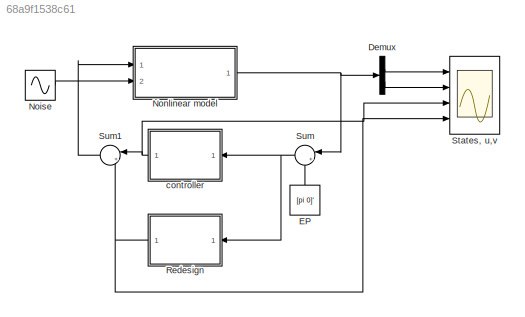
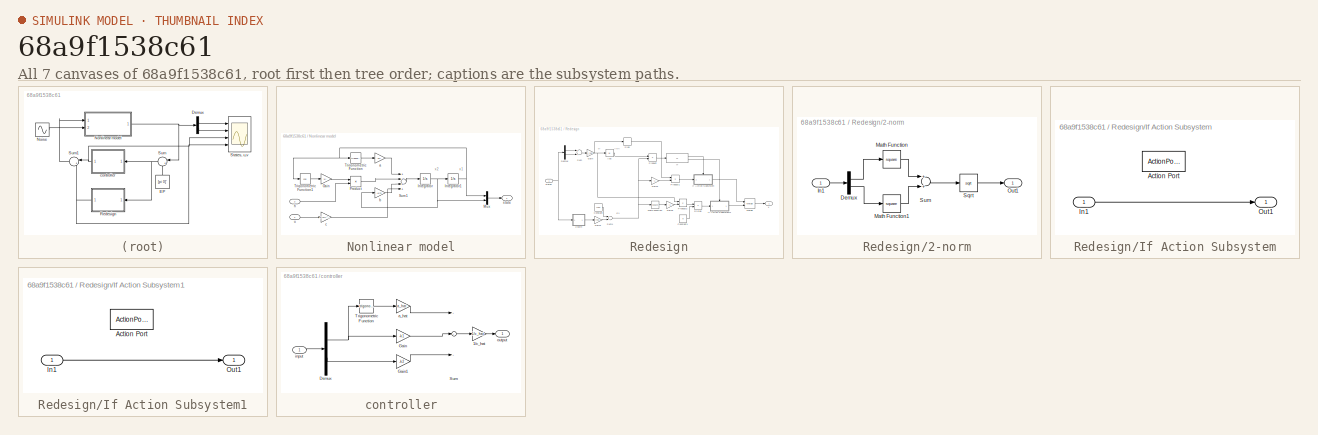
[diagram: thumbnail index - all 7 canvases of the model, root first then tree order]
MODEL slx_68a9f1538c61
KIND model
CONFIG AbsTol = auto
CONFIG FixedStep = auto
CONFIG InitFcn = run lyapRedesign.m
CONFIG MaxStep = auto
CONFIG MinStep = auto
CONFIG RelTol = 1e-3
CONFIG SampleTimeConstraint = Unconstrained
CONFIG Solver = VariableStepAuto
CONFIG SolverMode = Auto
CONFIG SolverName = VariableStepAuto
CONFIG StartTime = 0.0
CONFIG StopTime = 20
BLOCK [Demux] Demux
  DisplayOption = bar
  Outputs = 2
  Ports = [1, 2]
BLOCK [Constant] EP
  Value = [pi  0]'
BLOCK [Sin] Noise
  Frequency = 10
  Ports = [0, 1]
  SampleTime = 0
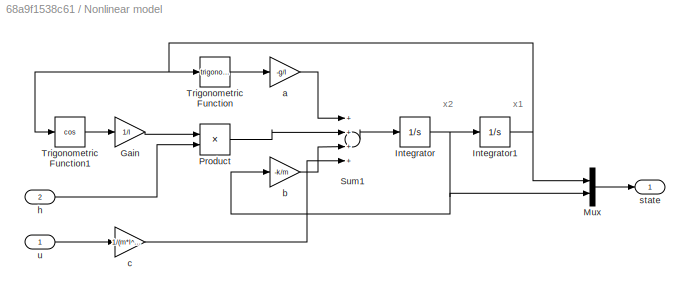
BLOCK [SubSystem] Nonlinear model
  Ports = [2, 1]
  RequestExecContextInheritance = off
  Variant = off
BLOCK [Gain] Nonlinear model/Gain
  Gain = 1/l
  OutDataTypeStr = Inherit: Inherit via internal rule
  ParamDataTypeStr = Inherit: Inherit via internal rule
  SaturateOnIntegerOverflow = off
BLOCK [Integrator] Nonlinear model/Integrator
  ContinuousStateAttributes = 'speed'
  Ports = [1, 1]
BLOCK [Integrator] Nonlinear model/Integrator1
  ContinuousStateAttributes = 'angle'
  Ports = [1, 1]
BLOCK [Mux] Nonlinear model/Mux
  DisplayOption = bar
  Inputs = 2
  Ports = [2, 1]
BLOCK [Product] Nonlinear model/Product
  InputSameDT = off
  OutDataTypeStr = Inherit: Inherit via internal rule
  Ports = [2, 1]
  RndMeth = Floor
  SaturateOnIntegerOverflow = off
BLOCK [Sum] Nonlinear model/Sum1
  InputSameDT = off
  Inputs = ++++
  OutDataTypeStr = Inherit: Inherit via internal rule
  Ports = [4, 1]
  SaturateOnIntegerOverflow = off
BLOCK [Trigonometry] Nonlinear model/Trigonometric Function
  Ports = [1, 1]
BLOCK [Trigonometry] Nonlinear model/Trigonometric Function1
  Operator = cos
  Ports = [1, 1]
BLOCK [Gain] Nonlinear model/a
  Gain = -g/l
  OutDataTypeStr = Inherit: Inherit via internal rule
  ParamDataTypeStr = Inherit: Inherit via internal rule
  SaturateOnIntegerOverflow = off
BLOCK [Gain] Nonlinear model/b
  Gain = -k/m
  OutDataTypeStr = Inherit: Inherit via internal rule
  ParamDataTypeStr = Inherit: Inherit via internal rule
  SaturateOnIntegerOverflow = off
BLOCK [Gain] Nonlinear model/c
  Gain = 1/(m*l^2)
  OutDataTypeStr = Inherit: Inherit via internal rule
  ParamDataTypeStr = Inherit: Inherit via internal rule
  SaturateOnIntegerOverflow = off
BLOCK [Inport] Nonlinear model/h
  IconDisplay = Port number
  Port = 2
BLOCK [Outport] Nonlinear model/state
  IconDisplay = Port number
BLOCK [Inport] Nonlinear model/u
  IconDisplay = Port number
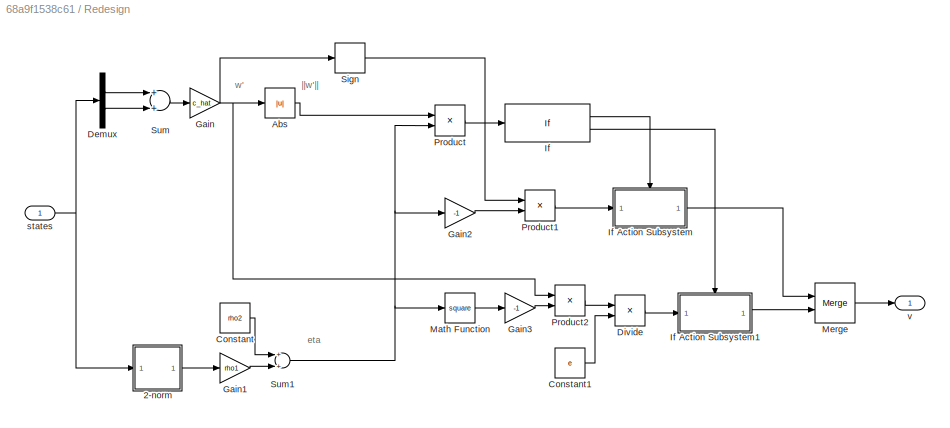
BLOCK [SubSystem] Redesign
  Ports = [1, 1]
  RequestExecContextInheritance = off
  Variant = off
BLOCK [SubSystem] Redesign/2-norm
  Ports = [1, 1]
  RequestExecContextInheritance = off
  Variant = off
BLOCK [Demux] Redesign/2-norm/Demux
  DisplayOption = bar
  Outputs = 2
  Ports = [1, 2]
BLOCK [Inport] Redesign/2-norm/In1
  IconDisplay = Port number
BLOCK [Math] Redesign/2-norm/Math Function
  Operator = square
  Ports = [1, 1]
BLOCK [Math] Redesign/2-norm/Math Function1
  Operator = square
  Ports = [1, 1]
BLOCK [Outport] Redesign/2-norm/Out1
  IconDisplay = Port number
BLOCK [Sqrt] Redesign/2-norm/Sqrt
BLOCK [Sum] Redesign/2-norm/Sum
  InputSameDT = off
  OutDataTypeStr = Inherit: Inherit via internal rule
  Ports = [2, 1]
  SaturateOnIntegerOverflow = off
BLOCK [Abs] Redesign/Abs
  SaturateOnIntegerOverflow = off
  ZeroCross = off
BLOCK [Constant] Redesign/Constant
  Value = rho2
BLOCK [Constant] Redesign/Constant1
  Value = e
BLOCK [Demux] Redesign/Demux
  DisplayOption = bar
  Outputs = 2
  Ports = [1, 2]
BLOCK [Product] Redesign/Divide
  InputSameDT = off
  Inputs = */
  OutDataTypeStr = Inherit: Inherit via internal rule
  Ports = [2, 1]
  RndMeth = Floor
  SaturateOnIntegerOverflow = off
BLOCK [Gain] Redesign/Gain
  Gain = c_hat
  OutDataTypeStr = Inherit: Inherit via internal rule
  ParamDataTypeStr = Inherit: Inherit via internal rule
  SaturateOnIntegerOverflow = off
BLOCK [Gain] Redesign/Gain1
  Gain = rho1
  OutDataTypeStr = Inherit: Inherit via internal rule
  ParamDataTypeStr = Inherit: Inherit via internal rule
  SaturateOnIntegerOverflow = off
BLOCK [Gain] Redesign/Gain2
  Gain = -1
  OutDataTypeStr = Inherit: Inherit via internal rule
  ParamDataTypeStr = Inherit: Inherit via internal rule
  SaturateOnIntegerOverflow = off
BLOCK [Gain] Redesign/Gain3
  Gain = -1
  OutDataTypeStr = Inherit: Inherit via internal rule
  ParamDataTypeStr = Inherit: Inherit via internal rule
  SaturateOnIntegerOverflow = off
BLOCK [If] Redesign/If
  ElseIfExpressions = u1 < e
  IfExpression = u1 >= e
  Ports = [1, 2]
  ShowElse = off
  ZeroCross = off
BLOCK [SubSystem] Redesign/If Action Subsystem
  Ports = [1, 1, 0, 0, 0, 0, 0, 1]
  RequestExecContextInheritance = off
  TreatAsAtomicUnit = on
  Variant = off
BLOCK [ActionPort] Redesign/If Action Subsystem/Action Port
  ActionType = then
BLOCK [Inport] Redesign/If Action Subsystem/In1
  IconDisplay = Port number
BLOCK [Outport] Redesign/If Action Subsystem/Out1
  IconDisplay = Port number
BLOCK [SubSystem] Redesign/If Action Subsystem1
  Ports = [1, 1, 0, 0, 0, 0, 0, 1]
  RequestExecContextInheritance = off
  TreatAsAtomicUnit = on
  Variant = off
BLOCK [ActionPort] Redesign/If Action Subsystem1/Action Port
  ActionType = elseif
BLOCK [Inport] Redesign/If Action Subsystem1/In1
  IconDisplay = Port number
BLOCK [Outport] Redesign/If Action Subsystem1/Out1
  IconDisplay = Port number
BLOCK [Math] Redesign/Math Function
  Operator = square
  Ports = [1, 1]
BLOCK [Merge] Redesign/Merge
  Ports = [2, 1]
BLOCK [Product] Redesign/Product
  InputSameDT = off
  OutDataTypeStr = Inherit: Inherit via internal rule
  Ports = [2, 1]
  RndMeth = Floor
  SaturateOnIntegerOverflow = off
BLOCK [Product] Redesign/Product1
  InputSameDT = off
  OutDataTypeStr = Inherit: Inherit via internal rule
  Ports = [2, 1]
  RndMeth = Floor
  SaturateOnIntegerOverflow = off
BLOCK [Product] Redesign/Product2
  InputSameDT = off
  OutDataTypeStr = Inherit: Inherit via internal rule
  Ports = [2, 1]
  RndMeth = Floor
  SaturateOnIntegerOverflow = off
BLOCK [Signum] Redesign/Sign
  ZeroCross = off
BLOCK [Sum] Redesign/Sum
  InputSameDT = off
  OutDataTypeStr = Inherit: Inherit via internal rule
  Ports = [2, 1]
  SaturateOnIntegerOverflow = off
BLOCK [Sum] Redesign/Sum1
  InputSameDT = off
  OutDataTypeStr = Inherit: Inherit via internal rule
  Ports = [2, 1]
  SaturateOnIntegerOverflow = off
BLOCK [Inport] Redesign/states
  IconDisplay = Port number
BLOCK [Outport] Redesign/v
  IconDisplay = Port number
BLOCK [Scope] States, u,v
  NumInputPorts = 4
  Ports = [4]
  ScopeSpecificationString = Simulink.scopes.TimeScopeBlockCfg('CurrentConfiguration', extmgr.ConfigurationSet(extmgr.Configuration('Core','General UI',true),extmgr.Configuration('Core','Source UI',true),extmgr.Configuration('Sources','WiredSimulink',true),extmgr.Configuration('Visuals','Time Domain',true,'SerializedDisplays',{struct('MinYLimReal','-0.39305','MaxYLimReal','3.53749','YLabelReal','[rad]','MinYLimMag','0.00000',...<+3369ch>
BLOCK [Sum] Sum
  IconShape = round
  InputSameDT = off
  Inputs = |+-
  OutDataTypeStr = Inherit: Inherit via internal rule
  Ports = [2, 1]
  SaturateOnIntegerOverflow = off
BLOCK [Sum] Sum1
  IconShape = round
  InputSameDT = off
  Inputs = |++
  OutDataTypeStr = Inherit: Inherit via internal rule
  Ports = [2, 1]
  SaturateOnIntegerOverflow = off
BLOCK [SubSystem] controller
  Ports = [1, 1]
  RequestExecContextInheritance = off
  Variant = off
BLOCK [Gain] controller/1//c_hat
  Gain = 1/c_hat
  OutDataTypeStr = Inherit: Inherit via internal rule
  ParamDataTypeStr = Inherit: Inherit via internal rule
  SaturateOnIntegerOverflow = off
BLOCK [Demux] controller/Demux
  DisplayOption = bar
  Outputs = 2
  Ports = [1, 2]
BLOCK [Gain] controller/Gain
  Gain = -k1
  OutDataTypeStr = Inherit: Inherit via internal rule
  ParamDataTypeStr = Inherit: Inherit via internal rule
  SaturateOnIntegerOverflow = off
BLOCK [Gain] controller/Gain1
  Gain = -k2
  OutDataTypeStr = Inherit: Inherit via internal rule
  ParamDataTypeStr = Inherit: Inherit via internal rule
  SaturateOnIntegerOverflow = off
BLOCK [Sum] controller/Sum
  InputSameDT = off
  Inputs = +++
  OutDataTypeStr = Inherit: Inherit via internal rule
  Ports = [3, 1]
  SaturateOnIntegerOverflow = off
BLOCK [Trigonometry] controller/Trigonometric Function
  Ports = [1, 1]
BLOCK [Gain] controller/a_hat
  Gain = a_hat
  OutDataTypeStr = Inherit: Inherit via internal rule
  ParamDataTypeStr = Inherit: Inherit via internal rule
  SaturateOnIntegerOverflow = off
BLOCK [Inport] controller/input
  IconDisplay = Port number
BLOCK [Outport] controller/output
  IconDisplay = Port number
ANNOTATION Nonlinear model: x1
ANNOTATION Nonlinear model: x2
ANNOTATION Redesign: eta
ANNOTATION Redesign: w'
ANNOTATION Redesign: ||w'||
LINE Demux:1 -> States, u,v:1
LINE Demux:2 -> States, u,v:2
LINE EP:1 -> Sum:2
LINE Noise:1 -> Nonlinear model:2
LINE Nonlinear model/Gain:1 -> Nonlinear model/Product:1
NET Nonlinear model/Integrator1:1 -> Nonlinear model/Mux:1, Nonlinear model/Trigonometric Function1:1, Nonlinear model/Trigonometric Function:1
NET Nonlinear model/Integrator:1 -> Nonlinear model/Integrator1:1, Nonlinear model/Mux:2, Nonlinear model/b:1
LINE Nonlinear model/Mux:1 -> Nonlinear model/state:1
LINE Nonlinear model/Product:1 -> Nonlinear model/Sum1:2
LINE Nonlinear model/Sum1:1 -> Nonlinear model/Integrator:1
LINE Nonlinear model/Trigonometric Function1:1 -> Nonlinear model/Gain:1
LINE Nonlinear model/Trigonometric Function:1 -> Nonlinear model/a:1
LINE Nonlinear model/a:1 -> Nonlinear model/Sum1:1
LINE Nonlinear model/b:1 -> Nonlinear model/Sum1:3
LINE Nonlinear model/c:1 -> Nonlinear model/Sum1:4
LINE Nonlinear model/h:1 -> Nonlinear model/Product:2
LINE Nonlinear model/u:1 -> Nonlinear model/c:1
NET Nonlinear model:1 -> Demux:1, Sum:1
LINE Redesign/2-norm/Demux:1 -> Redesign/2-norm/Math Function:1
LINE Redesign/2-norm/Demux:2 -> Redesign/2-norm/Math Function1:1
LINE Redesign/2-norm/In1:1 -> Redesign/2-norm/Demux:1
LINE Redesign/2-norm/Math Function1:1 -> Redesign/2-norm/Sum:2
LINE Redesign/2-norm/Math Function:1 -> Redesign/2-norm/Sum:1
LINE Redesign/2-norm/Sqrt:1 -> Redesign/2-norm/Out1:1
LINE Redesign/2-norm/Sum:1 -> Redesign/2-norm/Sqrt:1
LINE Redesign/2-norm:1 -> Redesign/Gain1:1
LINE Redesign/Abs:1 -> Redesign/Product:1
LINE Redesign/Constant1:1 -> Redesign/Divide:2
LINE Redesign/Constant:1 -> Redesign/Sum1:1
LINE Redesign/Demux:1 -> Redesign/Sum:1
LINE Redesign/Demux:2 -> Redesign/Sum:2
LINE Redesign/Divide:1 -> Redesign/If Action Subsystem1:1
LINE Redesign/Gain1:1 -> Redesign/Sum1:2
LINE Redesign/Gain2:1 -> Redesign/Product1:2
LINE Redesign/Gain3:1 -> Redesign/Product2:2
NET Redesign/Gain:1 -> Redesign/Abs:1, Redesign/Product2:1, Redesign/Sign:1
LINE Redesign/If Action Subsystem/In1:1 -> Redesign/If Action Subsystem/Out1:1
LINE Redesign/If Action Subsystem1/In1:1 -> Redesign/If Action Subsystem1/Out1:1
LINE Redesign/If Action Subsystem1:1 -> Redesign/Merge:2
LINE Redesign/If Action Subsystem:1 -> Redesign/Merge:1
LINE Redesign/If:1 -> Redesign/If Action Subsystem:ifaction
LINE Redesign/If:2 -> Redesign/If Action Subsystem1:ifaction
LINE Redesign/Math Function:1 -> Redesign/Gain3:1
LINE Redesign/Merge:1 -> Redesign/v:1
LINE Redesign/Product1:1 -> Redesign/If Action Subsystem:1
LINE Redesign/Product2:1 -> Redesign/Divide:1
LINE Redesign/Product:1 -> Redesign/If:1
LINE Redesign/Sign:1 -> Redesign/Product1:1
NET Redesign/Sum1:1 -> Redesign/Gain2:1, Redesign/Math Function:1, Redesign/Product:2
LINE Redesign/Sum:1 -> Redesign/Gain:1
NET Redesign/states:1 -> Redesign/2-norm:1, Redesign/Demux:1
NET Redesign:1 -> States, u,v:4, Sum1:2
LINE Sum1:1 -> Nonlinear model:1
NET Sum:1 -> Redesign:1, controller:1
LINE controller/1//c_hat:1 -> controller/output:1
NET controller/Demux:1 -> controller/Gain:1, controller/Trigonometric Function:1
LINE controller/Demux:2 -> controller/Gain1:1
LINE controller/Gain1:1 -> controller/Sum:3
LINE controller/Gain:1 -> controller/Sum:2
LINE controller/Sum:1 -> controller/1//c_hat:1
LINE controller/Trigonometric Function:1 -> controller/a_hat:1
LINE controller/a_hat:1 -> controller/Sum:1
LINE controller/input:1 -> controller/Demux:1
NET controller:1 -> States, u,v:3, Sum1:1
note: NET lines group one-source signal fan-out (src -> all destinations, sorted); 1:1 wires keep LINE
